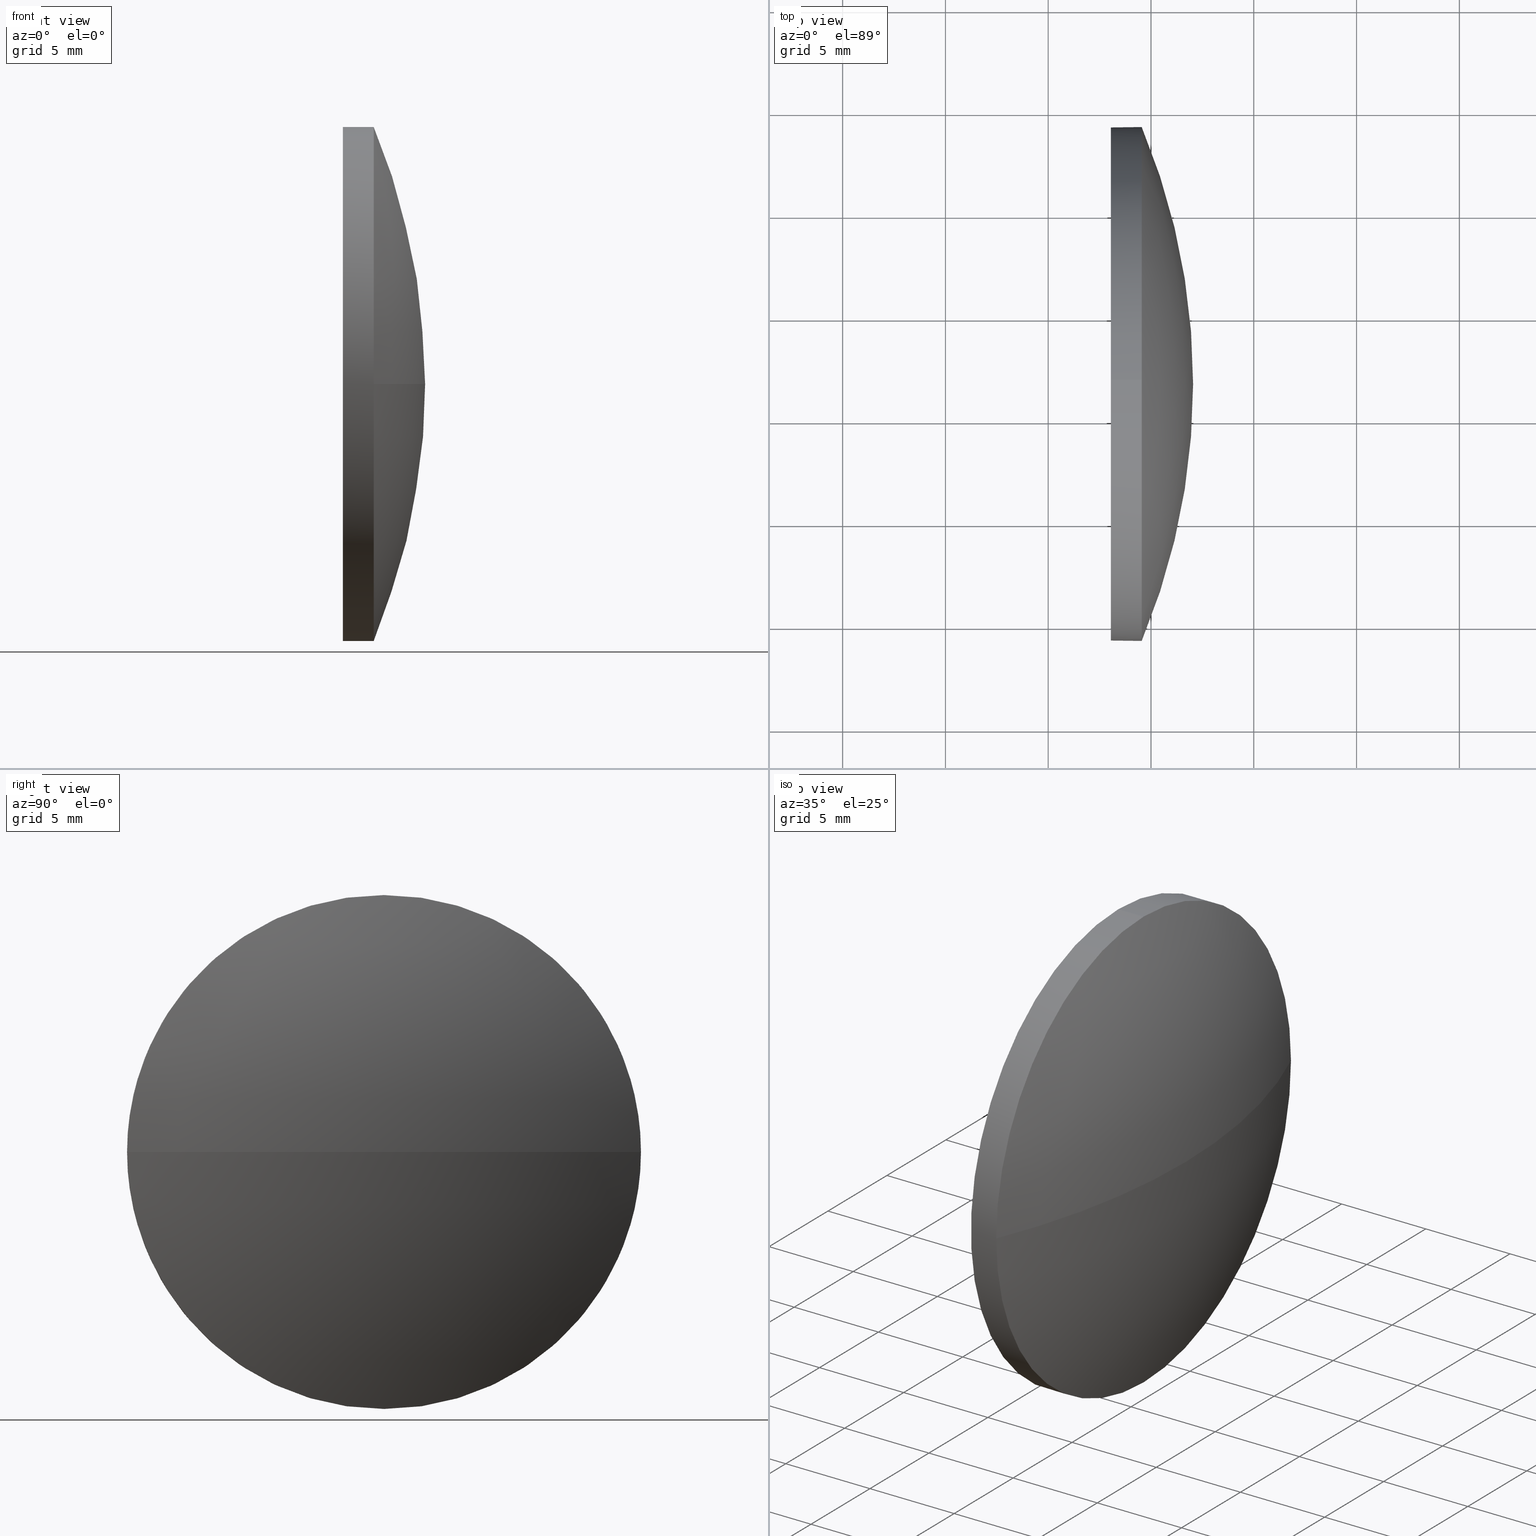
[diagram: canonical four-view strip — front | top / right | iso, engineering-drawing reading convention]
A machine part, canonical four-view strip (front | top / right | iso — engineering-drawing reading convention). The complete STEP part file that produces these views, byte-faithful:
ISO-10303-21;
HEADER;
FILE_DESCRIPTION (( 'STEP AP214' ),
    '1' );
FILE_NAME ('100041.STEP',
    '2019-04-29T06:53:07',
    ( '' ),
    ( '' ),
    'SwSTEP 2.0',
    'SolidWorks 2016',
    '' );
FILE_SCHEMA (( 'AUTOMOTIVE_DESIGN' ));
ENDSEC;

DATA;
#1 = EDGE_LOOP ( 'NONE', ( #32, #150, #129, #95 ) ) ;
#2 = SPHERICAL_SURFACE ( 'NONE', #155, 32.49999999999999300 ) ;
#3 = SURFACE_STYLE_USAGE ( .BOTH. , #47 ) ;
#4 = CARTESIAN_POINT ( 'NONE',  ( 669.5488725703303300, 221.7118161881164700, 0.0000000000000000000 ) ) ;
#5 = DIRECTION ( 'NONE',  ( -1.000000000000000000, -0.0000000000000000000, -0.0000000000000000000 ) ) ;
#6 = CARTESIAN_POINT ( 'NONE',  ( 672.0488725703303300, 221.7118161881164700, 0.0000000000000000000 ) ) ;
#7 = AXIS2_PLACEMENT_3D ( 'NONE', #175, #19, #58 ) ;
#8 = ADVANCED_FACE ( 'NONE', ( #119 ), #76, .T. ) ;
#9 = PRESENTATION_STYLE_ASSIGNMENT (( #41 ) ) ;
#10 = DIRECTION ( 'NONE',  ( -1.000000000000000000, -0.0000000000000000000, -0.0000000000000000000 ) ) ;
#11 = DIRECTION ( 'NONE',  ( -0.0000000000000000000, 0.0000000000000000000, -1.000000000000000000 ) ) ;
#12 = MANIFOLD_SOLID_BREP ( '��ת2', #85 ) ;
#13 = ORIENTED_EDGE ( 'NONE', *, *, #24, .F. ) ;
#14 = CIRCLE ( 'NONE', #7, 32.49999999999997200 ) ;
#15 = ORIENTED_EDGE ( 'NONE', *, *, #79, .F. ) ;
#16 = ORIENTED_EDGE ( 'NONE', *, *, #24, .T. ) ;
#17 = EDGE_CURVE ( 'NONE', #156, #21, #14, .T. ) ;
#18 = UNCERTAINTY_MEASURE_WITH_UNIT (LENGTH_MEASURE( 1.000000000000000100E-005 ), #96, 'distance_accuracy_value', 'NONE');
#19 = DIRECTION ( 'NONE',  ( 0.0000000000000000000, 1.224646799147353200E-016, -1.000000000000000000 ) ) ;
#20 = CARTESIAN_POINT ( 'NONE',  ( 639.5488725703303300, 221.7118161881164700, 0.0000000000000000000 ) ) ;
#21 = VERTEX_POINT ( 'NONE', #31 ) ;
#22 = DIRECTION ( 'NONE',  ( -0.0000000000000000000, 0.0000000000000000000, 1.000000000000000000 ) ) ;
#23 = DIRECTION ( 'NONE',  ( -1.000000000000000000, -0.0000000000000000000, -0.0000000000000000000 ) ) ;
#24 = EDGE_CURVE ( 'NONE', #52, #165, #154, .T. ) ;
#25 = ADVANCED_FACE ( 'NONE', ( #67 ), #101, .T. ) ;
#26 =( NAMED_UNIT ( * ) SI_UNIT ( $, .STERADIAN. ) SOLID_ANGLE_UNIT ( ) );
#27 = FILL_AREA_STYLE ('',( #180 ) ) ;
#28 = EDGE_CURVE ( 'NONE', #161, #52, #109, .T. ) ;
#29 = STYLED_ITEM ( 'NONE', ( #158 ), #12 ) ;
#30 = ORIENTED_EDGE ( 'NONE', *, *, #28, .T. ) ;
#31 = CARTESIAN_POINT ( 'NONE',  ( 669.5488725703303300, 209.2118161881165300, -1.530808498934185600E-015 ) ) ;
#32 = ORIENTED_EDGE ( 'NONE', *, *, #17, .F. ) ;
#33 = DIRECTION ( 'NONE',  ( 0.0000000000000000000, 0.0000000000000000000, 1.000000000000000000 ) ) ;
#34 = DIRECTION ( 'NONE',  ( -1.000000000000000000, -0.0000000000000000000, -0.0000000000000000000 ) ) ;
#35 = FACE_OUTER_BOUND ( 'NONE', #130, .T. ) ;
#36 = APPLICATION_PROTOCOL_DEFINITION ( 'draft international standard', 'automotive_design', 1998, #183 ) ;
#37 = EDGE_CURVE ( 'NONE', #165, #21, #146, .T. ) ;
#38 = CARTESIAN_POINT ( 'NONE',  ( 639.5488725703303300, 221.7118161881164700, 0.0000000000000000000 ) ) ;
#39 =( GEOMETRIC_REPRESENTATION_CONTEXT ( 3 ) GLOBAL_UNCERTAINTY_ASSIGNED_CONTEXT ( ( #100 ) ) GLOBAL_UNIT_ASSIGNED_CONTEXT ( ( #103, #46, #132 ) ) REPRESENTATION_CONTEXT ( 'NONE', 'WORKASPACE' ) );
#40 = CARTESIAN_POINT ( 'NONE',  ( 669.5488725703303300, 221.7118161881164700, 0.0000000000000000000 ) ) ;
#41 = SURFACE_STYLE_USAGE ( .BOTH. , #126 ) ;
#42 = SURFACE_STYLE_FILL_AREA ( #104 ) ;
#43 = EDGE_LOOP ( 'NONE', ( #16, #115, #148, #15, #30 ) ) ;
#44 = COLOUR_RGB ( '',1.000000000000000000, 1.000000000000000000, 1.000000000000000000 ) ;
#45 = PRODUCT_DEFINITION ( 'δ֪', '', #53, #142 ) ;
#46 =( NAMED_UNIT ( * ) PLANE_ANGLE_UNIT ( ) SI_UNIT ( $, .RADIAN. ) );
#47 = SURFACE_SIDE_STYLE ('',( #42 ) ) ;
#48 = ORIENTED_EDGE ( 'NONE', *, *, #66, .T. ) ;
#49 = CARTESIAN_POINT ( 'NONE',  ( 644.5807476027708800, 221.7118161881164700, 0.0000000000000000000 ) ) ;
#50 = APPLICATION_PROTOCOL_DEFINITION ( 'draft international standard', 'automotive_design', 1998, #108 ) ;
#51 = DIRECTION ( 'NONE',  ( 0.0000000000000000000, 1.000000000000000000, 0.0000000000000000000 ) ) ;
#52 = VERTEX_POINT ( 'NONE', #89 ) ;
#53 = PRODUCT_DEFINITION_FORMATION_WITH_SPECIFIED_SOURCE ( '�κ�', '', #122, .NOT_KNOWN. ) ;
#54 = EDGE_CURVE ( 'NONE', #156, #52, #184, .T. ) ;
#55 = AXIS2_PLACEMENT_3D ( 'NONE', #20, #70, #86 ) ;
#56 = ORIENTED_EDGE ( 'NONE', *, *, #160, .T. ) ;
#57 = ORIENTED_EDGE ( 'NONE', *, *, #37, .F. ) ;
#58 = DIRECTION ( 'NONE',  ( 0.0000000000000000000, 1.000000000000000000, 1.224646799147354200E-016 ) ) ;
#59 = EDGE_CURVE ( 'NONE', #165, #176, #140, .T. ) ;
#60 = DIRECTION ( 'NONE',  ( 0.0000000000000000000, 0.0000000000000000000, 1.000000000000000000 ) ) ;
#61 = AXIS2_PLACEMENT_3D ( 'NONE', #110, #75, #125 ) ;
#62 = DIRECTION ( 'NONE',  ( 0.0000000000000000000, 0.0000000000000000000, 1.000000000000000000 ) ) ;
#63 = VECTOR ( 'NONE', #23, 1000.000000000000000 ) ;
#64 = DIRECTION ( 'NONE',  ( 0.0000000000000000000, 0.0000000000000000000, 1.000000000000000000 ) ) ;
#65 = CYLINDRICAL_SURFACE ( 'NONE', #124, 12.49999999999998400 ) ;
#66 = EDGE_CURVE ( 'NONE', #176, #169, #152, .T. ) ;
#67 = FACE_OUTER_BOUND ( 'NONE', #1, .T. ) ;
#68 =( GEOMETRIC_REPRESENTATION_CONTEXT ( 3 ) GLOBAL_UNCERTAINTY_ASSIGNED_CONTEXT ( ( #18 ) ) GLOBAL_UNIT_ASSIGNED_CONTEXT ( ( #96, #98, #26 ) ) REPRESENTATION_CONTEXT ( 'NONE', 'WORKASPACE' ) );
#69 = CARTESIAN_POINT ( 'NONE',  ( 669.5488725703303300, 221.7118161881164700, 0.0000000000000000000 ) ) ;
#70 = DIRECTION ( 'NONE',  ( -0.0000000000000000000, 0.0000000000000000000, -1.000000000000000000 ) ) ;
#71 = AXIS2_PLACEMENT_3D ( 'NONE', #133, #149, #147 ) ;
#72 = ADVANCED_FACE ( 'NONE', ( #35 ), #65, .T. ) ;
#73 = PLANE ( 'NONE',  #61 ) ;
#74 = CIRCLE ( 'NONE', #116, 12.49999999999998400 ) ;
#75 = DIRECTION ( 'NONE',  ( 1.000000000000000000, 0.0000000000000000000, 0.0000000000000000000 ) ) ;
#76 = CYLINDRICAL_SURFACE ( 'NONE', #71, 12.49999999999998400 ) ;
#77 = CARTESIAN_POINT ( 'NONE',  ( 668.0488725703303300, 221.7118161881164700, 0.0000000000000000000 ) ) ;
#78 = ADVANCED_FACE ( 'NONE', ( #159 ), #73, .F. ) ;
#79 = EDGE_CURVE ( 'NONE', #161, #169, #186, .T. ) ;
#80 = STYLED_ITEM ( 'NONE', ( #9 ), #162 ) ;
#81 = FACE_OUTER_BOUND ( 'NONE', #88, .T. ) ;
#82 = ORIENTED_EDGE ( 'NONE', *, *, #54, .F. ) ;
#83 = AXIS2_PLACEMENT_3D ( 'NONE', #4, #87, #33 ) ;
#84 = ORIENTED_EDGE ( 'NONE', *, *, #66, .F. ) ;
#85 = CLOSED_SHELL ( 'NONE', ( #8, #90, #25, #72, #78 ) ) ;
#86 = DIRECTION ( 'NONE',  ( 0.0000000000000000000, 1.000000000000000000, 0.0000000000000000000 ) ) ;
#87 = DIRECTION ( 'NONE',  ( -1.000000000000000000, -0.0000000000000000000, -0.0000000000000000000 ) ) ;
#88 = EDGE_LOOP ( 'NONE', ( #82, #144, #57, #13 ) ) ;
#89 = CARTESIAN_POINT ( 'NONE',  ( 669.5488725703303300, 234.2118161881164200, 0.0000000000000000000 ) ) ;
#90 = ADVANCED_FACE ( 'NONE', ( #81 ), #2, .T. ) ;
#91 =( LENGTH_UNIT ( ) NAMED_UNIT ( * ) SI_UNIT ( .MILLI., .METRE. ) );
#92 = DIRECTION ( 'NONE',  ( 0.0000000000000000000, 0.0000000000000000000, 1.000000000000000000 ) ) ;
#93 = AXIS2_PLACEMENT_3D ( 'NONE', #106, #151, #60 ) ;
#94 = CARTESIAN_POINT ( 'NONE',  ( 669.5488725703303300, 221.7118161881164700, 12.49999999999998400 ) ) ;
#95 = ORIENTED_EDGE ( 'NONE', *, *, #160, .F. ) ;
#96 =( LENGTH_UNIT ( ) NAMED_UNIT ( * ) SI_UNIT ( .MILLI., .METRE. ) );
#97 = UNCERTAINTY_MEASURE_WITH_UNIT (LENGTH_MEASURE( 1.000000000000000100E-005 ), #91, 'distance_accuracy_value', 'NONE');
#98 =( NAMED_UNIT ( * ) PLANE_ANGLE_UNIT ( ) SI_UNIT ( $, .RADIAN. ) );
#99 = CIRCLE ( 'NONE', #107, 12.49999999999998400 ) ;
#100 = UNCERTAINTY_MEASURE_WITH_UNIT (LENGTH_MEASURE( 1.000000000000000100E-005 ), #103, 'distance_accuracy_value', 'NONE');
#101 = SPHERICAL_SURFACE ( 'NONE', #55, 32.49999999999999300 ) ;
#102 = AXIS2_PLACEMENT_3D ( 'NONE', #38, #22, #136 ) ;
#103 =( LENGTH_UNIT ( ) NAMED_UNIT ( * ) SI_UNIT ( .MILLI., .METRE. ) );
#104 = FILL_AREA_STYLE ('',( #164 ) ) ;
#105 = ORIENTED_EDGE ( 'NONE', *, *, #172, .T. ) ;
#106 = CARTESIAN_POINT ( 'NONE',  ( 668.0488725703303300, 221.7118161881164700, 0.0000000000000000000 ) ) ;
#107 = AXIS2_PLACEMENT_3D ( 'NONE', #40, #10, #92 ) ;
#108 = APPLICATION_CONTEXT ( 'automotive_design' ) ;
#109 = CIRCLE ( 'NONE', #83, 12.49999999999998400 ) ;
#110 = CARTESIAN_POINT ( 'NONE',  ( 668.0488725703303300, 221.7118161881164400, 0.0000000000000000000 ) ) ;
#111 = CARTESIAN_POINT ( 'NONE',  ( 668.0488725703303300, 221.7118161881164700, 12.49999999999998400 ) ) ;
#112 = PRODUCT_CONTEXT ( 'NONE', #108, 'mechanical' ) ;
#113 = ORIENTED_EDGE ( 'NONE', *, *, #79, .T. ) ;
#114 = AXIS2_PLACEMENT_3D ( 'NONE', #118, #5, #120 ) ;
#115 = ORIENTED_EDGE ( 'NONE', *, *, #59, .T. ) ;
#116 = AXIS2_PLACEMENT_3D ( 'NONE', #77, #153, #62 ) ;
#117 = SURFACE_STYLE_FILL_AREA ( #27 ) ;
#118 = CARTESIAN_POINT ( 'NONE',  ( 669.5488725703303300, 221.7118161881164700, 0.0000000000000000000 ) ) ;
#119 = FACE_OUTER_BOUND ( 'NONE', #43, .T. ) ;
#120 = DIRECTION ( 'NONE',  ( 0.0000000000000000000, 0.0000000000000000000, 1.000000000000000000 ) ) ;
#121 = DIRECTION ( 'NONE',  ( -1.000000000000000000, -0.0000000000000000000, -0.0000000000000000000 ) ) ;
#122 = PRODUCT ( '100041', '100041', '', ( #112 ) ) ;
#123 = CARTESIAN_POINT ( 'NONE',  ( 669.5488725703303300, 221.7118161881164700, -12.49999999999998400 ) ) ;
#124 = AXIS2_PLACEMENT_3D ( 'NONE', #49, #121, #167 ) ;
#125 = DIRECTION ( 'NONE',  ( 0.0000000000000000000, 0.0000000000000000000, -1.000000000000000000 ) ) ;
#126 = SURFACE_SIDE_STYLE ('',( #117 ) ) ;
#127 = PRODUCT_RELATED_PRODUCT_CATEGORY ( 'part', '', ( #122 ) ) ;
#128 = PRESENTATION_LAYER_ASSIGNMENT (  '', '', ( #80 ) ) ;
#129 = ORIENTED_EDGE ( 'NONE', *, *, #28, .F. ) ;
#130 = EDGE_LOOP ( 'NONE', ( #141, #157, #56, #113, #84 ) ) ;
#131 = PRESENTATION_LAYER_ASSIGNMENT (  '', '', ( #29 ) ) ;
#132 =( NAMED_UNIT ( * ) SI_UNIT ( $, .STERADIAN. ) SOLID_ANGLE_UNIT ( ) );
#133 = CARTESIAN_POINT ( 'NONE',  ( 644.5807476027708800, 221.7118161881164700, 0.0000000000000000000 ) ) ;
#134 =( NAMED_UNIT ( * ) SI_UNIT ( $, .STERADIAN. ) SOLID_ANGLE_UNIT ( ) );
#135 = SHAPE_DEFINITION_REPRESENTATION ( #173, #162 ) ;
#136 = DIRECTION ( 'NONE',  ( 1.000000000000000000, 0.0000000000000000000, 0.0000000000000000000 ) ) ;
#137 = CARTESIAN_POINT ( 'NONE',  ( 668.0488725703303300, 221.7118161881164700, -12.49999999999998400 ) ) ;
#138 = CARTESIAN_POINT ( 'NONE',  ( 639.5488725703303300, 221.7118161881164700, 0.0000000000000000000 ) ) ;
#139 =( NAMED_UNIT ( * ) PLANE_ANGLE_UNIT ( ) SI_UNIT ( $, .RADIAN. ) );
#140 = LINE ( 'NONE', #177, #168 ) ;
#141 = ORIENTED_EDGE ( 'NONE', *, *, #59, .F. ) ;
#142 = PRODUCT_DEFINITION_CONTEXT ( 'detailed design', #183, 'design' ) ;
#143 = MECHANICAL_DESIGN_GEOMETRIC_PRESENTATION_REPRESENTATION (  '', ( #80 ), #181 ) ;
#144 = ORIENTED_EDGE ( 'NONE', *, *, #17, .T. ) ;
#145 = AXIS2_PLACEMENT_3D ( 'NONE', #182, #64, #170 ) ;
#146 = CIRCLE ( 'NONE', #114, 12.49999999999998400 ) ;
#147 = DIRECTION ( 'NONE',  ( 0.0000000000000000000, 0.0000000000000000000, 1.000000000000000000 ) ) ;
#148 = ORIENTED_EDGE ( 'NONE', *, *, #172, .F. ) ;
#149 = DIRECTION ( 'NONE',  ( -1.000000000000000000, -0.0000000000000000000, -0.0000000000000000000 ) ) ;
#150 = ORIENTED_EDGE ( 'NONE', *, *, #54, .T. ) ;
#151 = DIRECTION ( 'NONE',  ( -1.000000000000000000, -0.0000000000000000000, -0.0000000000000000000 ) ) ;
#152 = CIRCLE ( 'NONE', #93, 12.49999999999998400 ) ;
#153 = DIRECTION ( 'NONE',  ( -1.000000000000000000, -0.0000000000000000000, -0.0000000000000000000 ) ) ;
#154 = CIRCLE ( 'NONE', #166, 12.49999999999998400 ) ;
#155 = AXIS2_PLACEMENT_3D ( 'NONE', #138, #11, #51 ) ;
#156 = VERTEX_POINT ( 'NONE', #6 ) ;
#157 = ORIENTED_EDGE ( 'NONE', *, *, #37, .T. ) ;
#158 = PRESENTATION_STYLE_ASSIGNMENT (( #3 ) ) ;
#159 = FACE_OUTER_BOUND ( 'NONE', #171, .T. ) ;
#160 = EDGE_CURVE ( 'NONE', #21, #161, #99, .T. ) ;
#161 = VERTEX_POINT ( 'NONE', #94 ) ;
#162 = ADVANCED_BREP_SHAPE_REPRESENTATION ( '100041', ( #12, #145 ), #68 ) ;
#163 = DIRECTION ( 'NONE',  ( 0.0000000000000000000, 0.0000000000000000000, 1.000000000000000000 ) ) ;
#164 = FILL_AREA_STYLE_COLOUR ( '', #44 ) ;
#165 = VERTEX_POINT ( 'NONE', #123 ) ;
#166 = AXIS2_PLACEMENT_3D ( 'NONE', #69, #174, #163 ) ;
#167 = DIRECTION ( 'NONE',  ( 0.0000000000000000000, 0.0000000000000000000, 1.000000000000000000 ) ) ;
#168 = VECTOR ( 'NONE', #34, 1000.000000000000000 ) ;
#169 = VERTEX_POINT ( 'NONE', #111 ) ;
#170 = DIRECTION ( 'NONE',  ( 1.000000000000000000, 0.0000000000000000000, 0.0000000000000000000 ) ) ;
#171 = EDGE_LOOP ( 'NONE', ( #105, #48 ) ) ;
#172 = EDGE_CURVE ( 'NONE', #169, #176, #74, .T. ) ;
#173 = PRODUCT_DEFINITION_SHAPE ( 'NONE', 'NONE',  #45 ) ;
#174 = DIRECTION ( 'NONE',  ( -1.000000000000000000, -0.0000000000000000000, -0.0000000000000000000 ) ) ;
#175 = CARTESIAN_POINT ( 'NONE',  ( 639.5488725703303300, 221.7118161881164700, 0.0000000000000000000 ) ) ;
#176 = VERTEX_POINT ( 'NONE', #137 ) ;
#177 = CARTESIAN_POINT ( 'NONE',  ( 644.5807476027708800, 221.7118161881164700, -12.49999999999998400 ) ) ;
#178 = COLOUR_RGB ( '',1.000000000000000000, 1.000000000000000000, 1.000000000000000000 ) ;
#179 = CARTESIAN_POINT ( 'NONE',  ( 644.5807476027708800, 221.7118161881164700, 12.49999999999998400 ) ) ;
#180 = FILL_AREA_STYLE_COLOUR ( '', #178 ) ;
#181 =( GEOMETRIC_REPRESENTATION_CONTEXT ( 3 ) GLOBAL_UNCERTAINTY_ASSIGNED_CONTEXT ( ( #97 ) ) GLOBAL_UNIT_ASSIGNED_CONTEXT ( ( #91, #139, #134 ) ) REPRESENTATION_CONTEXT ( 'NONE', 'WORKASPACE' ) );
#182 = CARTESIAN_POINT ( 'NONE',  ( 0.0000000000000000000, 0.0000000000000000000, 0.0000000000000000000 ) ) ;
#183 = APPLICATION_CONTEXT ( 'automotive_design' ) ;
#184 = CIRCLE ( 'NONE', #102, 32.49999999999997200 ) ;
#185 = MECHANICAL_DESIGN_GEOMETRIC_PRESENTATION_REPRESENTATION (  '', ( #29 ), #39 ) ;
#186 = LINE ( 'NONE', #179, #63 ) ;
ENDSEC;
END-ISO-10303-21;
